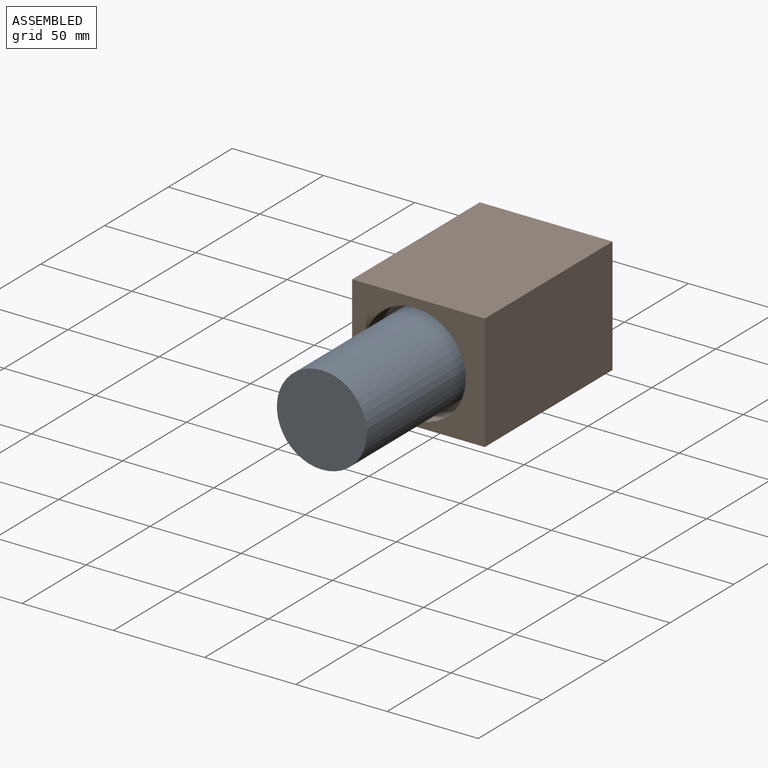
[diagram: assembled view]
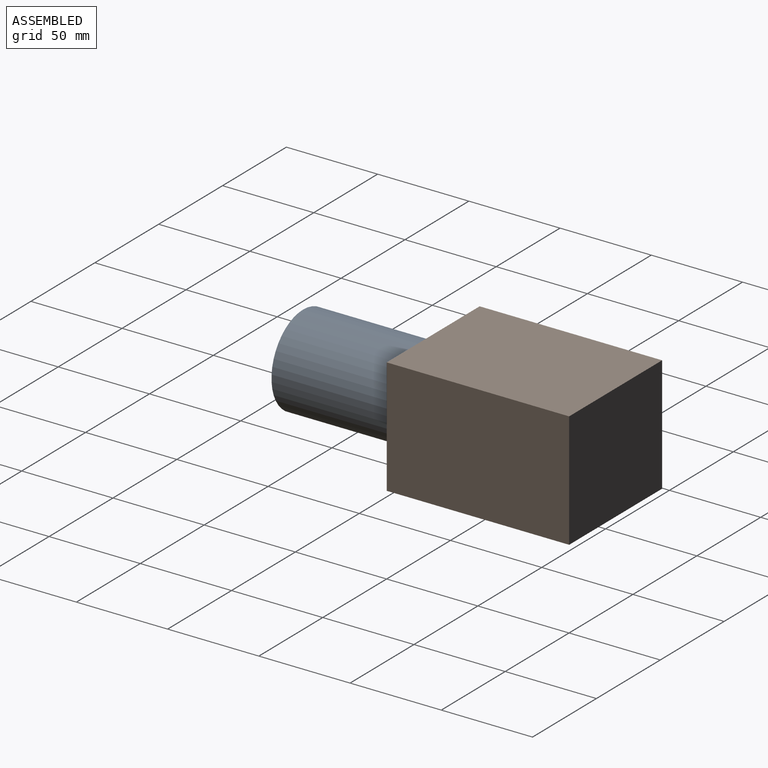
[diagram: assembled view, second angle]
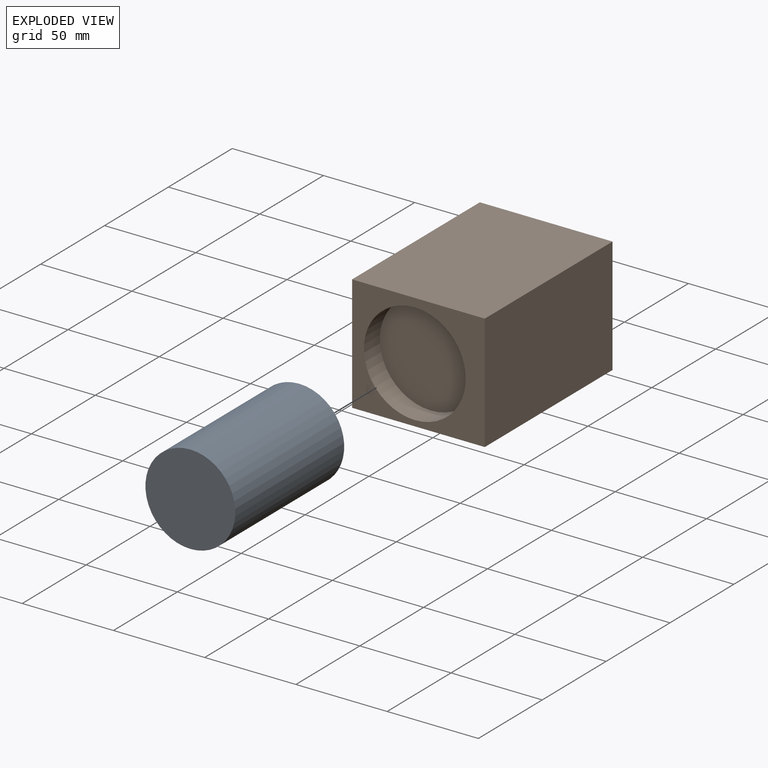
[diagram: exploded view]
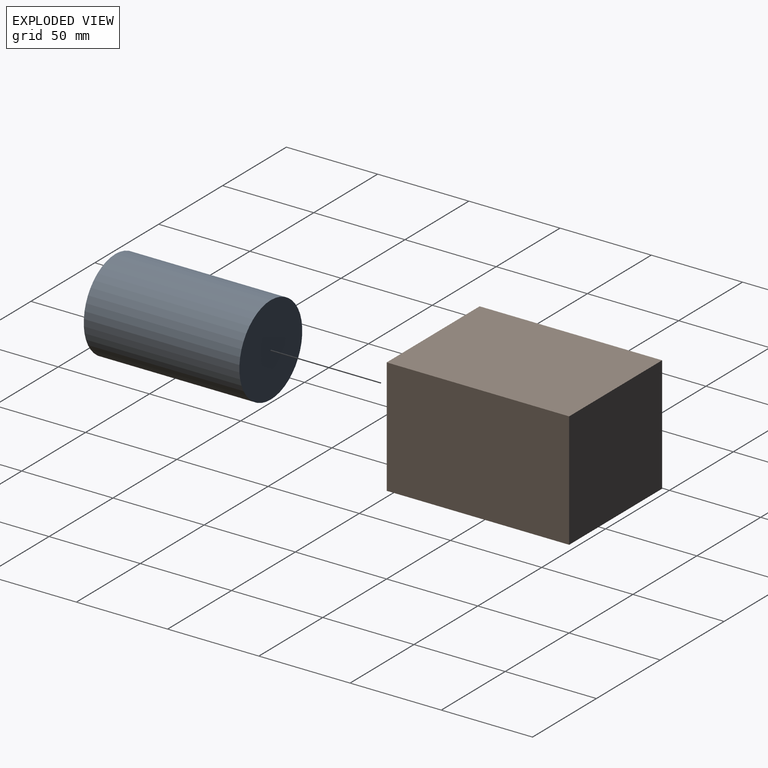
[diagram: exploded view, second angle]
ASSEMBLY  parts=2 mates=2
PART A: 3 faces, bbox 49.3x85.3x49.3 mm
  f0: cylinder r=24.63mm len=85.28mm, axis (0,1,0), area 13198.4mm2, adj f1,f2
  f1: plane 49.27x49.27mm, normal (0,-1,0), area 1906.2mm2, adj f0
  f2: plane 49.27x49.27mm, normal (0,1,0), area 1906.2mm2, adj f0
PART B: 8 faces, bbox 72.7x100x63.6 mm
  f0: plane 100x63.61mm, normal (1,0,0), area 6361.2mm2, adj f1,f3,f4,f5
  f1: plane 100x72.75mm, normal (0,0,1), area 7274.7mm2, adj f0,f2,f4,f5
  f2: plane 100x63.61mm, normal (-1,0,0), area 6361.2mm2, adj f1,f3,f4,f5
  f3: plane 100x72.75mm, normal (0,0,-1), area 7274.7mm2, adj f0,f2,f4,f5
  f4: plane 72.75x63.61mm, normal (0,-1,0), area 2181.4mm2, adj f0,f1,f2,f3,f6
  f5: plane 72.75x63.61mm, normal (0,1,0), area 4627.6mm2, adj f0,f1,f2,f3
  f6: cylinder r=27.9mm len=55.81mm, axis (0,-1,0), area 2191.6mm2, adj f4,f7
  f7: plane 55.81x55.81mm, normal (0,-1,0), area 2446.2mm2, adj f6
PLACE A t=(-58.44,-87.5,-49.73)mm
PLACE B at identity fixed
MATE slider B.f6 <-> A.f0  axis (0,-1,0) through (-9.89,-100,10.69)mm
MATE planar B.f6 <-> A.f0  axis (0,-1,0) through (-9.89,-87.5,10.69)mm
